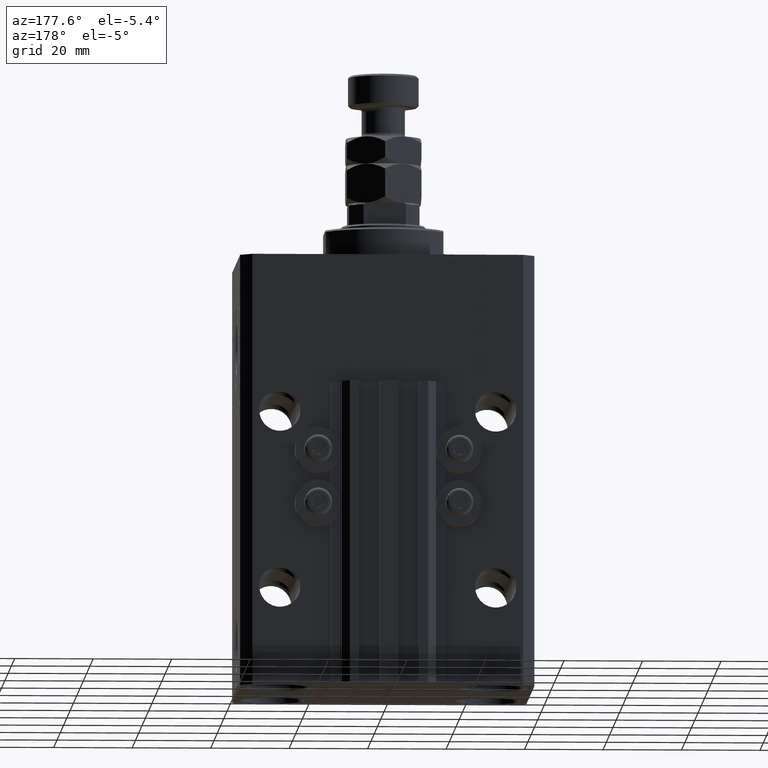
[diagram: clean part render]
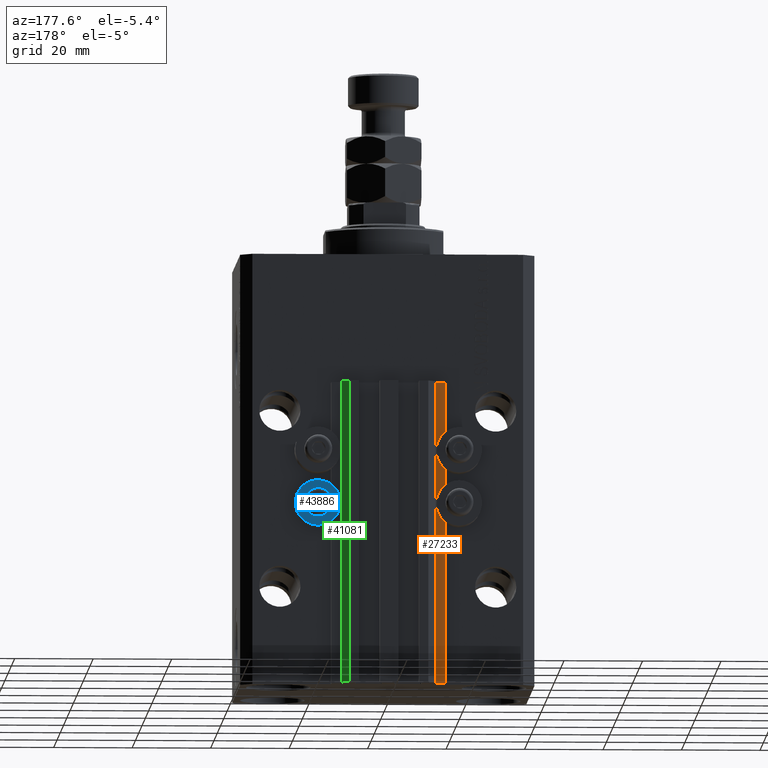
[diagram: same view with three faces highlighted in distinct colors, each labeled with its STEP entity id]
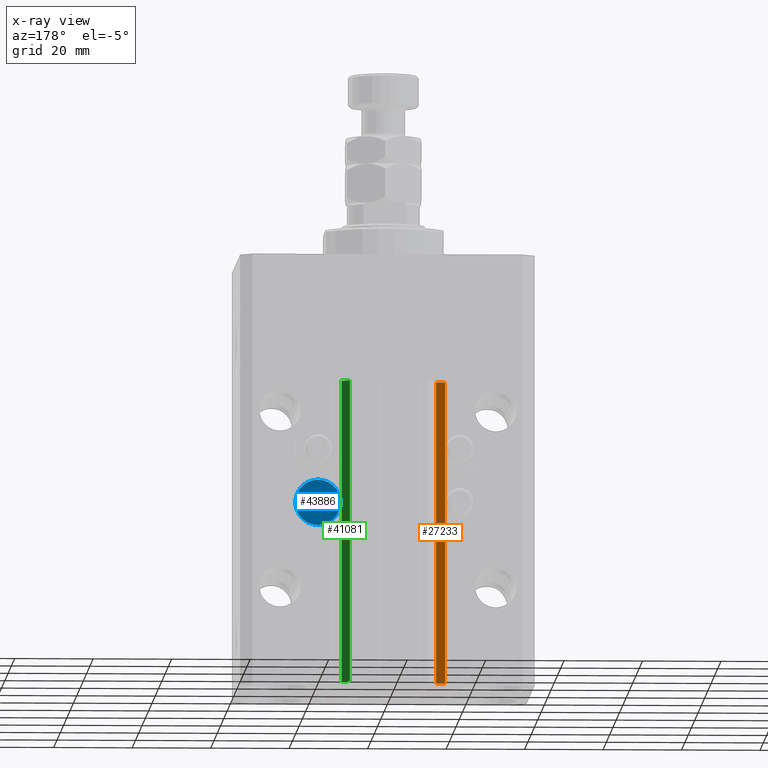
[diagram: x-ray of the same camera — body ghosted, the three highlighted faces saturated]
A machine part, auxiliary view with three faces highlighted in distinct colors.
The next image is the same camera in x-ray (body ghosted, the three faces saturated) — at least one of them is partly hidden behind the body in this view.
Their STEP definitions:

[orange] entity #27233 — the highlighted planar face has unit normal (0, 1, 0).
#4053 = DIRECTION ( 'NONE',  ( 0.000000000000000000, 0.000000000000000000, 1.000000000000000000 ) ) ;
#4100 = EDGE_CURVE ( 'NONE', #5137, #25068, #26302, .T. ) ;
#4228 = VECTOR ( 'NONE', #40941, 1000.000000000000000 ) ;
#5137 = VERTEX_POINT ( 'NONE', #20046 ) ;
#5387 = DIRECTION ( 'NONE',  ( 1.508455196501571429E-15, 1.000000000000000000, -0.000000000000000000 ) ) ;
#5585 = DIRECTION ( 'NONE',  ( 0.000000000000000000, 0.000000000000000000, 1.000000000000000000 ) ) ;
#6008 = EDGE_CURVE ( 'NONE', #43041, #25068, #8512, .T. ) ;
#6363 = PLANE ( 'NONE',  #9538 ) ;
#6595 = ORIENTED_EDGE ( 'NONE', *, *, #4100, .F. ) ;
#8512 = LINE ( 'NONE', #45940, #36701 ) ;
#9097 = CARTESIAN_POINT ( 'NONE',  ( -12.20000000000000107, 29.99999999999998934, -110.0000000000000000 ) ) ;
#9538 = AXIS2_PLACEMENT_3D ( 'NONE', #17266, #5387, #47292 ) ;
#11890 = CARTESIAN_POINT ( 'NONE',  ( -14.50000000000000000, 29.99999999999999289, -110.0000000000000000 ) ) ;
#13264 = LINE ( 'NONE', #21183, #14907 ) ;
#14907 = VECTOR ( 'NONE', #5585, 1000.000000000000000 ) ;
#17266 = CARTESIAN_POINT ( 'NONE',  ( -12.20000000000000107, 29.99999999999998934, -110.0000000000000000 ) ) ;
#18813 = EDGE_CURVE ( 'NONE', #30085, #5137, #13264, .T. ) ;
#20046 = CARTESIAN_POINT ( 'NONE',  ( -12.20000000000000107, 29.99999999999998934, -33.00000000000000000 ) ) ;
#21183 = CARTESIAN_POINT ( 'NONE',  ( -12.20000000000000107, 29.99999999999998934, -110.0000000000000000 ) ) ;
#24864 = ORIENTED_EDGE ( 'NONE', *, *, #18813, .F. ) ;
#25068 = VERTEX_POINT ( 'NONE', #45002 ) ;
#26302 = LINE ( 'NONE', #37716, #4228 ) ;
#27233 = ADVANCED_FACE ( 'NONE', ( #39344 ), #6363, .T. ) ;
#28180 = LINE ( 'NONE', #32394, #34433 ) ;
#30085 = VERTEX_POINT ( 'NONE', #9097 ) ;
#32394 = CARTESIAN_POINT ( 'NONE',  ( -12.20000000000000107, 29.99999999999998934, -110.0000000000000000 ) ) ;
#32934 = ORIENTED_EDGE ( 'NONE', *, *, #6008, .T. ) ;
#34433 = VECTOR ( 'NONE', #39588, 1000.000000000000000 ) ;
#36523 = ORIENTED_EDGE ( 'NONE', *, *, #39109, .T. ) ;
#36701 = VECTOR ( 'NONE', #4053, 1000.000000000000000 ) ;
#37716 = CARTESIAN_POINT ( 'NONE',  ( -12.20000000000000107, 29.99999999999998934, -33.00000000000000000 ) ) ;
#38533 = EDGE_LOOP ( 'NONE', ( #6595, #24864, #36523, #32934 ) ) ;
#39109 = EDGE_CURVE ( 'NONE', #30085, #43041, #28180, .T. ) ;
#39344 = FACE_OUTER_BOUND ( 'NONE', #38533, .T. ) ;
#39588 = DIRECTION ( 'NONE',  ( -1.000000000000000000, 1.508455196501571429E-15, 0.000000000000000000 ) ) ;
#40941 = DIRECTION ( 'NONE',  ( -1.000000000000000000, 1.508455196501571429E-15, 0.000000000000000000 ) ) ;
#43041 = VERTEX_POINT ( 'NONE', #11890 ) ;
#45002 = CARTESIAN_POINT ( 'NONE',  ( -14.50000000000000000, 29.99999999999999289, -33.00000000000000000 ) ) ;
#45940 = CARTESIAN_POINT ( 'NONE',  ( -14.50000000000000000, 29.99999999999999289, -110.0000000000000000 ) ) ;
#47292 = DIRECTION ( 'NONE',  ( -1.000000000000000000, 1.508455196501571429E-15, 0.000000000000000000 ) ) ;

[blue] entity #43886 — the highlighted planar face has unit normal (0, -1, 0).
#91 = DIRECTION ( 'NONE',  ( 0.000000000000000000, 0.000000000000000000, -1.000000000000000000 ) ) ;
#1261 = AXIS2_PLACEMENT_3D ( 'NONE', #38974, #21105, #5988 ) ;
#1532 = DIRECTION ( 'NONE',  ( 0.000000000000000000, 0.000000000000000000, -1.000000000000000000 ) ) ;
#3662 = DIRECTION ( 'NONE',  ( 0.000000000000000000, 0.000000000000000000, -1.000000000000000000 ) ) ;
#5988 = DIRECTION ( 'NONE',  ( -0.000000000000000000, 0.000000000000000000, 1.000000000000000000 ) ) ;
#8347 = CIRCLE ( 'NONE', #10745, 2.000000000000001776 ) ;
#9208 = CARTESIAN_POINT ( 'NONE',  ( 18.00000000000000355, 32.49999999996100541, -62.00000000000000000 ) ) ;
#9708 = PLANE ( 'NONE',  #1261 ) ;
#10275 = CIRCLE ( 'NONE', #30039, 2.000000000000001776 ) ;
#10603 = CARTESIAN_POINT ( 'NONE',  ( 18.00000000000000355, 32.49999999996100541, -64.00000000000000000 ) ) ;
#10745 = AXIS2_PLACEMENT_3D ( 'NONE', #38251, #41962, #91 ) ;
#13224 = AXIS2_PLACEMENT_3D ( 'NONE', #10603, #22006, #3662 ) ;
#14023 = CARTESIAN_POINT ( 'NONE',  ( 18.00000000000000355, 32.49999999996100541, -64.00000000000000000 ) ) ;
#14512 = DIRECTION ( 'NONE',  ( 0.000000000000000000, 1.000000000000000000, 0.000000000000000000 ) ) ;
#15546 = EDGE_LOOP ( 'NONE', ( #38187, #42187 ) ) ;
#17603 = CIRCLE ( 'NONE', #35838, 5.799999999999999822 ) ;
#18125 = VERTEX_POINT ( 'NONE', #22403 ) ;
#21105 = DIRECTION ( 'NONE',  ( 0.000000000000000000, -1.000000000000000000, 0.000000000000000000 ) ) ;
#22006 = DIRECTION ( 'NONE',  ( 0.000000000000000000, 1.000000000000000000, 0.000000000000000000 ) ) ;
#22403 = CARTESIAN_POINT ( 'NONE',  ( 18.00000000000000355, 32.49999999996100541, -66.00000000000000000 ) ) ;
#25813 = EDGE_CURVE ( 'NONE', #35740, #18125, #10275, .T. ) ;
#28093 = CARTESIAN_POINT ( 'NONE',  ( 18.00000000000000355, 32.49999999996100541, -58.20000000000000284 ) ) ;
#30039 = AXIS2_PLACEMENT_3D ( 'NONE', #39203, #35483, #1532 ) ;
#30217 = EDGE_CURVE ( 'NONE', #40714, #38180, #17603, .T. ) ;
#33772 = CIRCLE ( 'NONE', #13224, 5.799999999999999822 ) ;
#35324 = ORIENTED_EDGE ( 'NONE', *, *, #45724, .T. ) ;
#35483 = DIRECTION ( 'NONE',  ( 0.000000000000000000, 1.000000000000000000, 0.000000000000000000 ) ) ;
#35740 = VERTEX_POINT ( 'NONE', #9208 ) ;
#35838 = AXIS2_PLACEMENT_3D ( 'NONE', #14023, #14512, #40780 ) ;
#37510 = CARTESIAN_POINT ( 'NONE',  ( 18.00000000000000355, 32.49999999996100541, -69.79999999999999716 ) ) ;
#38180 = VERTEX_POINT ( 'NONE', #37510 ) ;
#38187 = ORIENTED_EDGE ( 'NONE', *, *, #25813, .F. ) ;
#38251 = CARTESIAN_POINT ( 'NONE',  ( 18.00000000000000355, 32.49999999996100541, -64.00000000000000000 ) ) ;
#38594 = ORIENTED_EDGE ( 'NONE', *, *, #30217, .T. ) ;
#38974 = CARTESIAN_POINT ( 'NONE',  ( 12.20000000000000284, 32.49999999996100541, -64.00000000000000000 ) ) ;
#39203 = CARTESIAN_POINT ( 'NONE',  ( 18.00000000000000355, 32.49999999996100541, -64.00000000000000000 ) ) ;
#39668 = EDGE_CURVE ( 'NONE', #18125, #35740, #8347, .T. ) ;
#39694 = FACE_OUTER_BOUND ( 'NONE', #47995, .T. ) ;
#40714 = VERTEX_POINT ( 'NONE', #28093 ) ;
#40780 = DIRECTION ( 'NONE',  ( 0.000000000000000000, 0.000000000000000000, -1.000000000000000000 ) ) ;
#41962 = DIRECTION ( 'NONE',  ( 0.000000000000000000, 1.000000000000000000, 0.000000000000000000 ) ) ;
#42187 = ORIENTED_EDGE ( 'NONE', *, *, #39668, .F. ) ;
#43661 = FACE_BOUND ( 'NONE', #15546, .T. ) ;
#43886 = ADVANCED_FACE ( 'NONE', ( #43661, #39694 ), #9708, .F. ) ;
#45724 = EDGE_CURVE ( 'NONE', #38180, #40714, #33772, .T. ) ;
#47995 = EDGE_LOOP ( 'NONE', ( #35324, #38594 ) ) ;

[green] entity #41081 — the highlighted planar face has unit normal (0.7071, 0.7071, 0).
#6 = PLANE ( 'NONE',  #9964 ) ;
#3070 = VERTEX_POINT ( 'NONE', #40081 ) ;
#4033 = EDGE_LOOP ( 'NONE', ( #35049, #31308, #9284, #4249 ) ) ;
#4249 = ORIENTED_EDGE ( 'NONE', *, *, #37171, .T. ) ;
#9284 = ORIENTED_EDGE ( 'NONE', *, *, #33186, .T. ) ;
#9964 = AXIS2_PLACEMENT_3D ( 'NONE', #37922, #30465, #48861 ) ;
#10781 = CARTESIAN_POINT ( 'NONE',  ( 12.00000000000000000, 33.50000000000001421, -33.00000000000000000 ) ) ;
#11388 = DIRECTION ( 'NONE',  ( 0.000000000000000000, 0.000000000000000000, 1.000000000000000000 ) ) ;
#11692 = DIRECTION ( 'NONE',  ( -0.7071067811865474617, 0.7071067811865474617, 0.000000000000000000 ) ) ;
#11996 = CARTESIAN_POINT ( 'NONE',  ( 12.00000000000000000, 33.50000000000001421, -33.00000000000000000 ) ) ;
#13708 = VERTEX_POINT ( 'NONE', #33276 ) ;
#14003 = CARTESIAN_POINT ( 'NONE',  ( 9.999999999999998224, 35.50000000000001421, -110.0000000000000000 ) ) ;
#15369 = VECTOR ( 'NONE', #22933, 1000.000000000000000 ) ;
#15404 = LINE ( 'NONE', #46650, #44513 ) ;
#21046 = EDGE_CURVE ( 'NONE', #24386, #3070, #35282, .T. ) ;
#22806 = FACE_OUTER_BOUND ( 'NONE', #4033, .T. ) ;
#22933 = DIRECTION ( 'NONE',  ( 0.000000000000000000, 0.000000000000000000, 1.000000000000000000 ) ) ;
#24333 = VERTEX_POINT ( 'NONE', #14003 ) ;
#24386 = VERTEX_POINT ( 'NONE', #10781 ) ;
#24859 = EDGE_CURVE ( 'NONE', #13708, #24386, #45351, .T. ) ;
#26392 = CARTESIAN_POINT ( 'NONE',  ( 9.999999999999998224, 35.50000000000001421, -110.0000000000000000 ) ) ;
#26728 = CARTESIAN_POINT ( 'NONE',  ( 12.00000000000000000, 33.50000000000001421, -110.0000000000000000 ) ) ;
#30465 = DIRECTION ( 'NONE',  ( 0.7071067811865475727, 0.7071067811865475727, -0.000000000000000000 ) ) ;
#31308 = ORIENTED_EDGE ( 'NONE', *, *, #24859, .F. ) ;
#33155 = VECTOR ( 'NONE', #42964, 1000.000000000000114 ) ;
#33186 = EDGE_CURVE ( 'NONE', #13708, #24333, #15404, .T. ) ;
#33276 = CARTESIAN_POINT ( 'NONE',  ( 12.00000000000000000, 33.50000000000001421, -110.0000000000000000 ) ) ;
#35049 = ORIENTED_EDGE ( 'NONE', *, *, #21046, .F. ) ;
#35282 = LINE ( 'NONE', #11996, #33155 ) ;
#37171 = EDGE_CURVE ( 'NONE', #24333, #3070, #37807, .T. ) ;
#37807 = LINE ( 'NONE', #26392, #15369 ) ;
#37922 = CARTESIAN_POINT ( 'NONE',  ( 12.00000000000000000, 33.50000000000001421, -110.0000000000000000 ) ) ;
#40081 = CARTESIAN_POINT ( 'NONE',  ( 9.999999999999998224, 35.50000000000001421, -33.00000000000000000 ) ) ;
#41081 = ADVANCED_FACE ( 'NONE', ( #22806 ), #6, .T. ) ;
#42674 = VECTOR ( 'NONE', #11388, 1000.000000000000000 ) ;
#42964 = DIRECTION ( 'NONE',  ( -0.7071067811865474617, 0.7071067811865474617, 0.000000000000000000 ) ) ;
#44513 = VECTOR ( 'NONE', #11692, 1000.000000000000114 ) ;
#45351 = LINE ( 'NONE', #26728, #42674 ) ;
#46650 = CARTESIAN_POINT ( 'NONE',  ( 12.00000000000000000, 33.50000000000001421, -110.0000000000000000 ) ) ;
#48861 = DIRECTION ( 'NONE',  ( -0.7071067811865474617, 0.7071067811865474617, 0.000000000000000000 ) ) ;